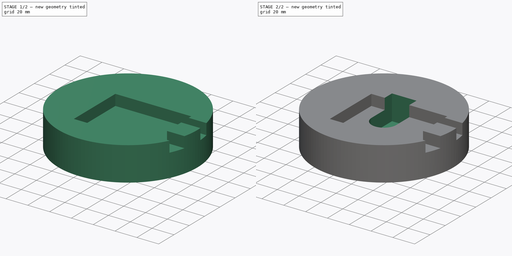
[diagram: build sequence overview — one tinted view per stage of 2, left to right]
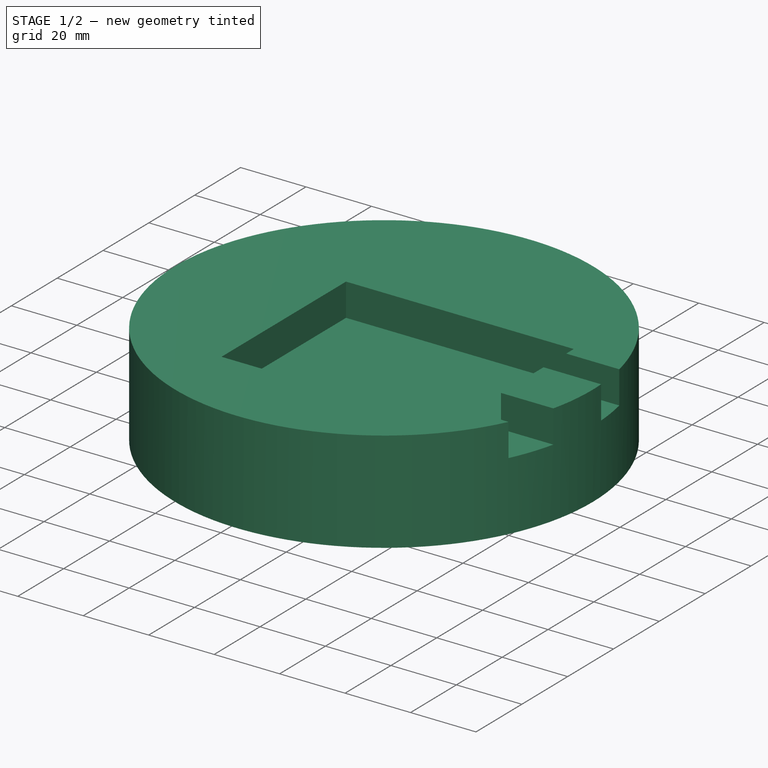
[diagram: stage 1 of 2 — iso view after this stage's code; geometry added in this stage tinted green]
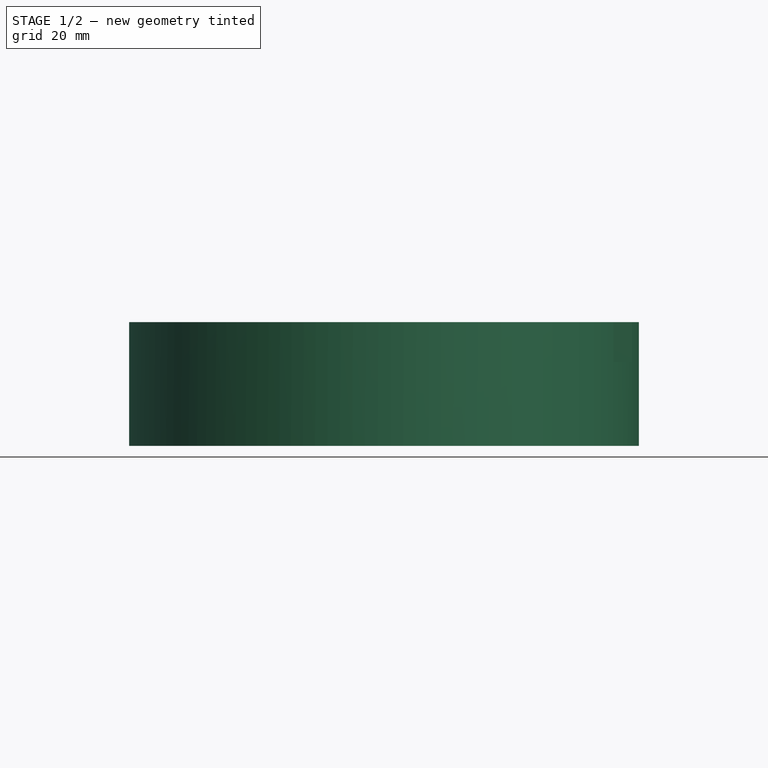
[diagram: stage 1 of 2 — front view after this stage's code; geometry added in this stage tinted green]
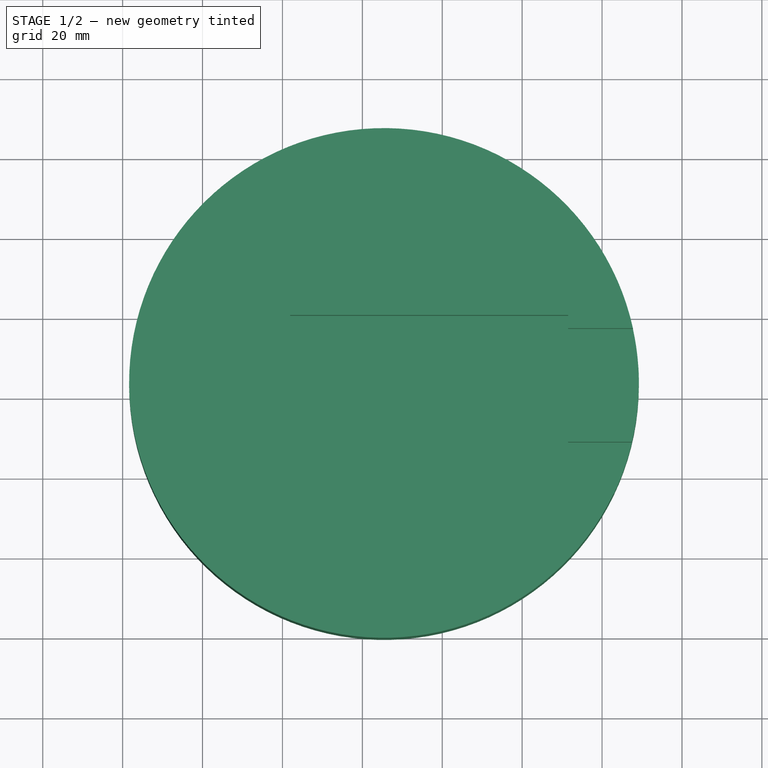
[diagram: stage 1 of 2 — top view after this stage's code; geometry added in this stage tinted green]
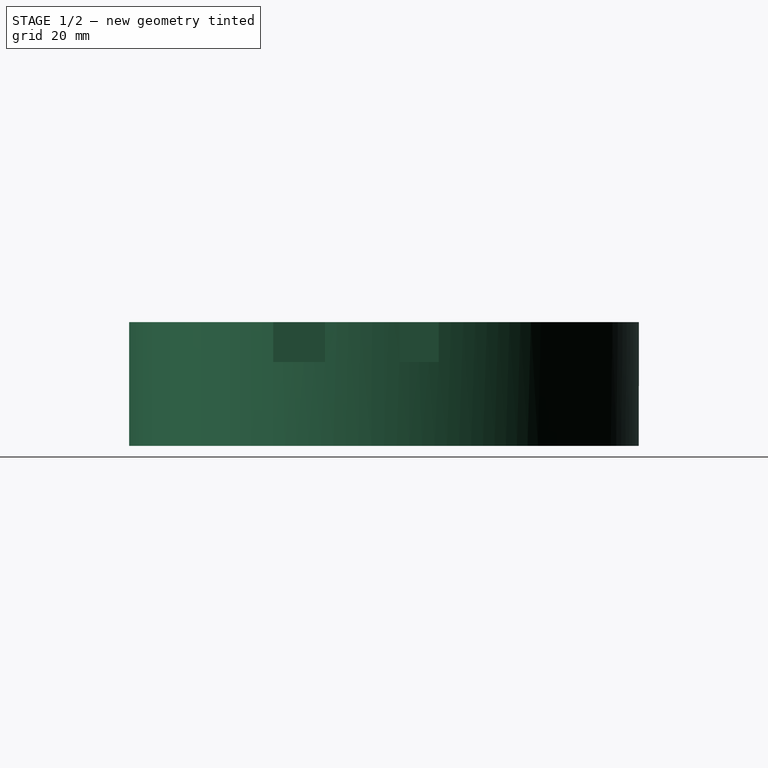
[diagram: stage 1 of 2 — right view after this stage's code; geometry added in this stage tinted green]
FCSTD DOCUMENT  (FreeCAD 0.18R14555 (Git shallow))
Label: Top
License: All rights reserved
LicenseURL: http://en.wikipedia.org/wiki/All_rights_reserved
objects: PartDesign::Line×11, Sketcher::SketchObject×4, PartDesign::Pocket×3, TechDraw::DrawSVGTemplate×2, TechDraw::DrawViewPart×2, TechDraw::DrawPage×2, Part::Feature×1, Spreadsheet::Sheet×1, PartDesign::Pad×1, PartDesign::Body×1, Part::Part2DObjectPython×1
note: 26 computed .brp shape members not serialized (recipe doc carries the construction recipe); baked Part::Feature solids carry a one-line shape summary decoded from their .brp

FEATURE [Part::Feature] Shape  label="ArduinoDXF"
  Placement = pos=(51,-1.1e-14,0) rot=(0,0,1;1.5708rad)
  shape: bbox 75.08 x 53.34 x 2e-07 mm, 0 faces, 0 solids (baked)
FEATURE [PartDesign::Line] DatumLine
  AttacherType = Attacher::AttachEngineLine
  MapMode = 29
  Placement = pos=(-17.58,-1.07e-14,0) rot=(1,0,0;1.5708rad)
  Support = -> [Shape]
FEATURE [PartDesign::Line] DatumLine001
  AttacherType = Attacher::AttachEngineLine
  MapMode = 29
  Placement = pos=(51,-1.07e-14,0) rot=(0,0.707107,0.707107;3.14159rad)
  Support = -> [Shape]
FEATURE [PartDesign::Line] DatumLine002
  AttacherType = Attacher::AttachEngineLine
  MapMode = 29
  Placement = pos=(51,-1.1e-14,0) rot=(-0.57735,0.57735,0.57735;4.18879rad)
  Support = -> [Shape]
FEATURE [PartDesign::Line] DatumLine003
  AttacherType = Attacher::AttachEngineLine
  MapMode = 29
  Placement = pos=(51,-53.34,0) rot=(0.57735,0.57735,0.57735;2.0944rad)
  Support = -> [Shape]
FEATURE [PartDesign::Line] DatumLine007
  AttacherType = Attacher::AttachEngineLine
  MapMode = 29
  Placement = pos=(57.5024,-1.42e-14,0) rot=(1,0,0;1.5708rad)
  Support = -> [Shape]
FEATURE [Spreadsheet::Sheet] Spreadsheet
  cells = A1=Toleranz to Arduino; B1(toleranz)=0.5; A2=x distance Arduino - Poti; B2(xDistArduinoPoti)=23; A3=y distance Arduino - Poti; B3(yDistArduinoPoti)=16.5; A4=Vertiefung Arduino; B4(vertiefungArduino)=10; A5=PotiDickeSchwarz; B5(PotiDickeSchwarz)=13; A6=PotiDickePin; B6(PotiDickePin)=15; A7=PotiLängeGewinde; B7(PotiGewinde)=8; A8=PotiDurchmesserSchwarz; B8(PotiDurchmesserSchwarz)=22.5; A9=PotiDurchmesserGewinde; B9(PotiDurchmesserGewinde)=10.5
FEATURE [PartDesign::Line] DatumLine008
  AttacherType = Attacher::AttachEngineLine
  MapMode = 29
  Placement = pos=(51,-43.7261,0) rot=(0.57735,0.57735,0.57735;2.0944rad)
  Support = -> [Shape]
FEATURE [PartDesign::Line] DatumLine009
  AttacherType = Attacher::AttachEngineLine
  MapMode = 29
  Placement = pos=(51,-31.75,0) rot=(0.57735,0.57735,0.57735;2.0944rad)
  Support = -> [Shape]
FEATURE [PartDesign::Line] DatumLine010
  AttacherType = Attacher::AttachEngineLine
  MapMode = 29
  Placement = pos=(41.1194,-1.42e-14,0) rot=(0,0.707107,0.707107;3.14159rad)
  Support = -> [Shape]
FEATURE [Sketcher::SketchObject] Sketch
  ExternalGeometry = -> [DatumLine,DatumLine007,DatumLine003,DatumLine002,DatumLine009,DatumLine008,DatumLine010]
  MapMode = 5
  Support = -> [XY_Plane]
  expr: Constraints[3] = Spreadsheet.yDistArduinoPoti
  expr: Constraints[2] = Spreadsheet.xDistArduinoPoti
  sketch-geometry (4):
    g0: GeomPoint X=-17.58 Y=-1.9e-14 Z=0
    g1: GeomPoint X=5.42 Y=-16.5 Z=0
    g2: Circle CenterX=5.42 CenterY=-16.5 CenterZ=0 NormalX=0 NormalY=0 NormalZ=1 AngleXU=0 Radius=63.7947
    g3: GeomPoint X=57.5024 Y=-53.34 Z=0
  constraints (8):
    c: PointOnObject(g0,g-3)
    c: PointOnObject(g0,g-6)
    c: DistanceX(g0,g1) = 23
    c: DistanceY(g1,g0) = 16.5
    c: Coincident(g2,g1)
    c: PointOnObject(g3,g2)
    c: PointOnObject(g3,g-5)
    c: PointOnObject(g3,g-4)
FEATURE [PartDesign::Pad] Pad
  Length = 31
  Length2 = 100
  Profile = -> Sketch
  Type = 0
  expr: Length = Spreadsheet.vertiefungArduino + Spreadsheet.PotiDickeSchwarz + Spreadsheet.PotiGewinde
FEATURE [TechDraw::DrawSVGTemplate] Template
  EditableTexts = Designed_by_Name=Designed by Name; Drawing_number=Drawing number; FC-Date=Date; FC-SC=Scale; FC-SH=Sheet; FC-Title=Title; Subtitle=Subtitle; Weight=Weight
  Height = 210
  Orientation = 1
  Width = 297
FEATURE [PartDesign::Line] DatumLine011
  AttacherType = Attacher::AttachEngineLine
  MapMode = 29
  Placement = pos=(51,-12.192,0) rot=(0.57735,-0.57735,-0.57735;2.0944rad)
  Support = -> [Shape]
FEATURE [PartDesign::Line] DatumLine012
  AttacherType = Attacher::AttachEngineLine
  MapMode = 29
  Placement = pos=(51,-3.302,0) rot=(0.57735,0.57735,0.57735;2.0944rad)
  Support = -> [Shape]
FEATURE [PartDesign::Line] DatumLine013
  AttacherType = Attacher::AttachEngineLine
  MapMode = 29
  Placement = pos=(38.9604,-1.07e-14,0) rot=(0,0.707107,0.707107;3.14159rad)
  Support = -> [Shape]
FEATURE [Sketcher::SketchObject] Sketch001
  ExternalGeometry = -> [DatumLine,DatumLine002,DatumLine007,DatumLine001,DatumLine010,DatumLine009,DatumLine008,DatumLine003,DatumLine013,DatumLine012,DatumLine011]
  MapMode = 5
  Placement = pos=(0,0,31) rot=(0,0,1;0rad)
  Support = -> [Pad]
  expr: Constraints[47] = Spreadsheet.toleranz
  expr: Constraints[48] = Spreadsheet.toleranz
  expr: Constraints[16] = Spreadsheet.toleranz
  expr: Constraints[33] = Spreadsheet.toleranz
  expr: Constraints[29] = Spreadsheet.toleranz
  expr: Constraints[19] = Spreadsheet.toleranz
  expr: Constraints[18] = Spreadsheet.toleranz
  expr: Constraints[17] = Spreadsheet.toleranz
  sketch-geometry (20):
    g0: GeomPoint X=-17.58 Y=-1.9e-14 Z=0
    g1: GeomPoint X=51 Y=-1.14e-14 Z=0
    g2: GeomPoint X=51 Y=-53.34 Z=0
    g3: GeomPoint X=-17.58 Y=-53.34 Z=0
    g4: LineSegment StartX=-18.08 StartY=0.5 StartZ=0 EndX=51.5 EndY=0.5 EndZ=0
    g5: LineSegment StartX=51.5 StartY=0.5 StartZ=0 EndX=51.5 EndY=-2.802 EndZ=0
    g6: LineSegment StartX=51.5 StartY=-53.84 StartZ=0 EndX=-18.08 EndY=-53.84 EndZ=0
    g7: LineSegment StartX=-18.08 StartY=-53.84 StartZ=0 EndX=-18.08 EndY=0.5 EndZ=0
    g8: LineSegment StartX=51.5 StartY=-31.25 StartZ=0 EndX=101.5 EndY=-31.25 EndZ=0
    g9: LineSegment StartX=101.5 StartY=-31.25 StartZ=0 EndX=101.5 EndY=-44.2261 EndZ=0
    g10: LineSegment StartX=101.5 StartY=-44.2261 StartZ=0 EndX=51.5 EndY=-44.2261 EndZ=0
    g11: GeomPoint X=41.1194 Y=-31.75 Z=0
    g12: GeomPoint X=41.1194 Y=-43.7261 Z=0
    g13: LineSegment StartX=51.5 StartY=-44.2261 StartZ=0 EndX=51.5 EndY=-53.84 EndZ=0
    g14: LineSegment StartX=51.5 StartY=-2.802 StartZ=0 EndX=101.5 EndY=-2.802 EndZ=0
    g15: LineSegment StartX=101.5 StartY=-2.802 StartZ=0 EndX=101.5 EndY=-12.692 EndZ=0
    g16: LineSegment StartX=101.5 StartY=-12.692 StartZ=0 EndX=51.5 EndY=-12.692 EndZ=0
    g17: LineSegment StartX=51.5 StartY=-12.692 StartZ=0 EndX=51.5 EndY=-31.25 EndZ=0
    g18: GeomPoint X=51 Y=-3.302 Z=0
    g19: GeomPoint X=51 Y=-12.192 Z=0
  constraints (50):
    c: PointOnObject(g3,g-10)
    c: PointOnObject(g3,g-3)
    c: PointOnObject(g0,g-3)
    c: PointOnObject(g0,g-4)
    c: PointOnObject(g1,g-4)
    c: PointOnObject(g1,g-6)
    c: PointOnObject(g2,g-10)
    c: PointOnObject(g2,g-6)
    c: Coincident(g4,g5)
    c: Coincident(g13,g6)
    c: Coincident(g6,g7)
    c: Coincident(g7,g4)
    c: Horizontal(g4)
    c: Horizontal(g6)
    c: Vertical(g5)
    c: Vertical(g7)
    c: DistanceY(g6,g3) = 0.5
    c: DistanceX(g6,g3) = 0.5
    c: DistanceY(g0,g4) = 0.5
    c: DistanceX(g1,g4) = 0.5
    c: Horizontal(g8)
    c: Coincident(g9,g8)
    c: Vertical(g9)
    c: Coincident(g10,g9)
    c: Horizontal(g10)
    c: PointOnObject(g11,g-7)
    c: PointOnObject(g11,g-8)
    c: PointOnObject(g12,g-9)
    c: PointOnObject(g12,g-7)
    c: DistanceY(g11,g8) = 0.5
    c: Coincident(g17,g8)
    c: Coincident(g13,g10)
    c: Tangent(g5,g13)
    c: DistanceY(g10,g12) = 0.5
    c: DistanceX(g8,g8) = 50
    c: Horizontal(g14)
    c: Coincident(g15,g14)
    c: Coincident(g16,g15)
    c: Horizontal(g16)
    c: Vertical(g15)
    c: Coincident(g5,g14)
    c: Coincident(g17,g16)
    c: Tangent(g5,g17)
    c: PointOnObject(g18,g-6)
    c: PointOnObject(g19,g-6)
    c: PointOnObject(g19,g-13)
    c: PointOnObject(g18,g-12)
    c: DistanceY(g16,g19) = 0.5
    c: DistanceY(g18,g5) = 0.5
    c: DistanceX(g16,g16) = 50
FEATURE [PartDesign::Pocket] Pocket
  BaseFeature = -> Pad
  Length = 10
  Length2 = 100
  Profile = -> Sketch001
  Type = 0
  expr: Length = Spreadsheet.vertiefungArduino
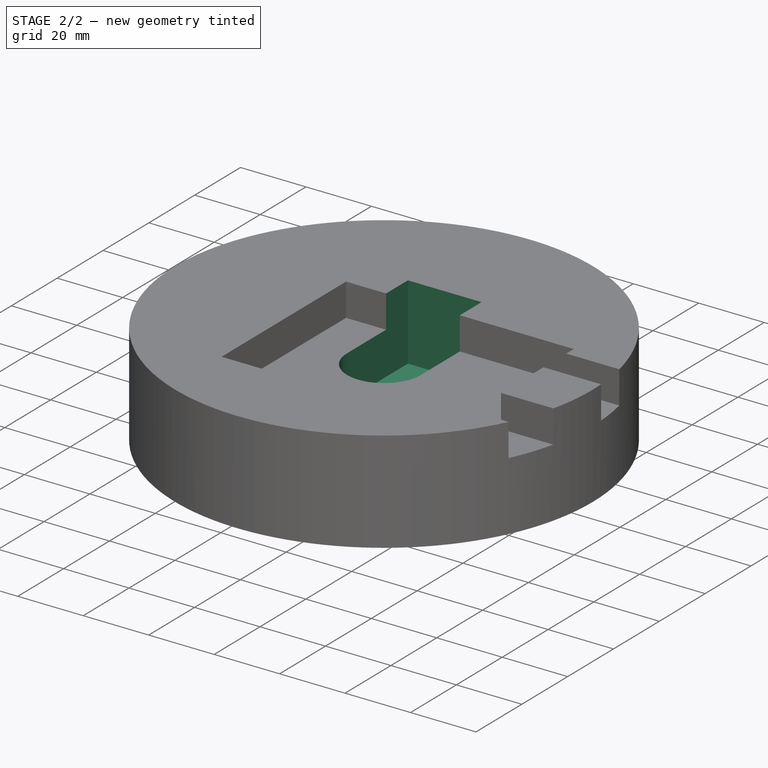
[diagram: stage 2 of 2 — iso view after this stage's code; geometry added in this stage tinted green]
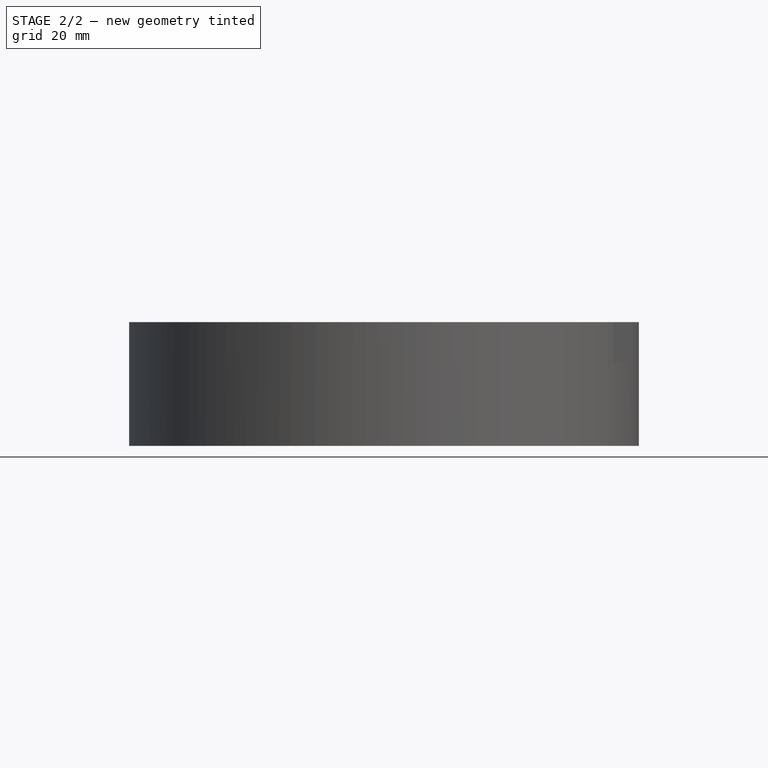
[diagram: stage 2 of 2 — front view after this stage's code; geometry added in this stage tinted green]
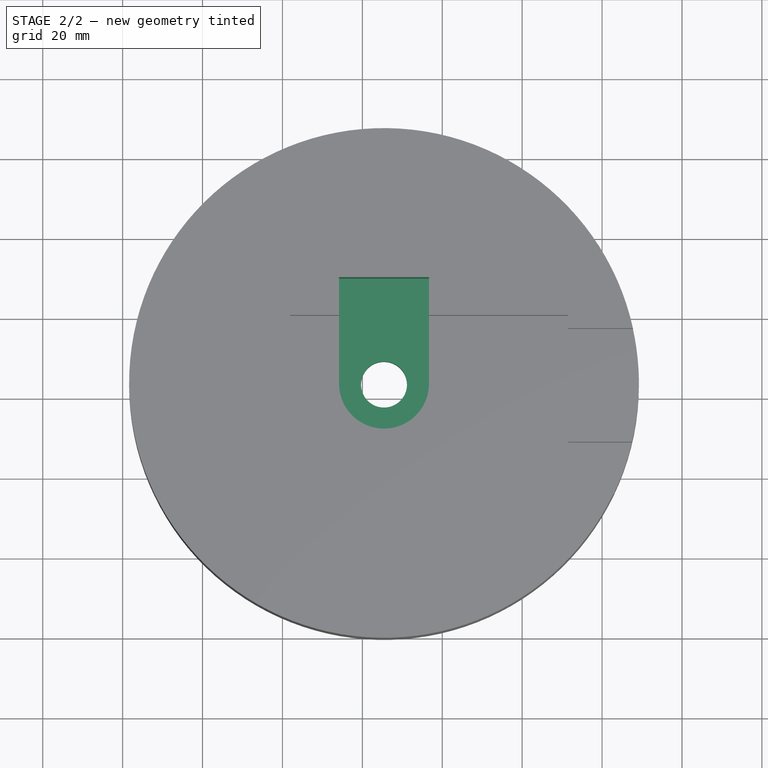
[diagram: stage 2 of 2 — top view after this stage's code; geometry added in this stage tinted green]
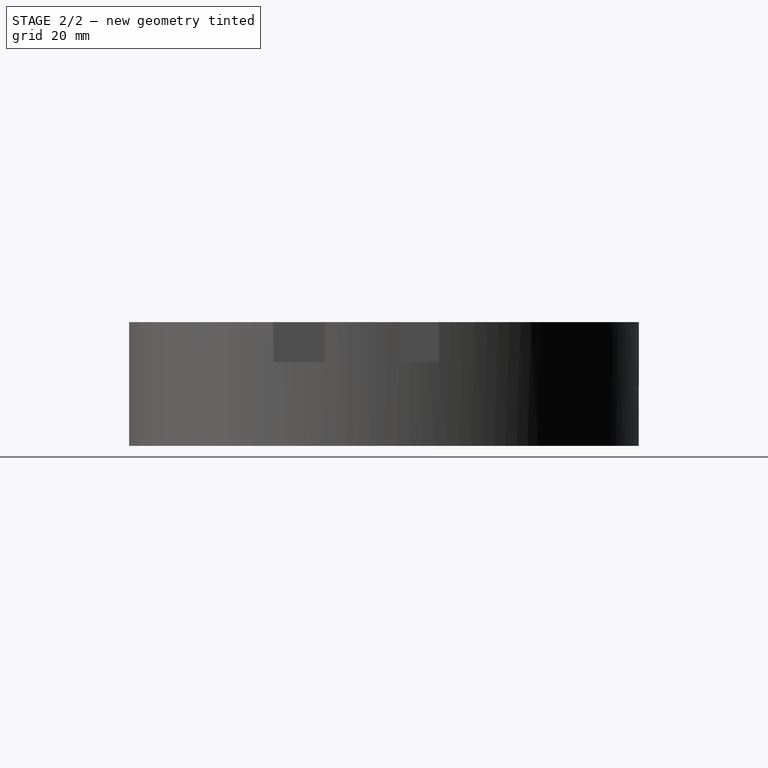
[diagram: stage 2 of 2 — right view after this stage's code; geometry added in this stage tinted green]
FEATURE [Sketcher::SketchObject] Sketch002
  ExternalGeometry = -> [DatumLine,DatumLine002]
  MapMode = 5
  Placement = pos=(0,0,31) rot=(0,0,1;0rad)
  Support = -> [Pocket]
  expr: Constraints[20] = Spreadsheet.PotiDurchmesserSchwarz / 2
  expr: Constraints[3] = Spreadsheet.xDistArduinoPoti
  expr: Constraints[2] = Spreadsheet.yDistArduinoPoti
  sketch-geometry (9):
    g0: GeomPoint X=-17.58 Y=-1.86e-14 Z=0
    g1: GeomPoint X=5.42 Y=-16.5 Z=0
    g2: ArcOfCircle CenterX=5.42 CenterY=-16.5 CenterZ=0 NormalX=0 NormalY=0 NormalZ=1 AngleXU=0 Radius=11.25 StartAngle=3.14159 EndAngle=6.28319
    g3: LineSegment StartX=-5.83 StartY=-16.5 StartZ=0 EndX=-5.83 EndY=-1.78e-14 EndZ=0
    g4: LineSegment StartX=16.67 StartY=-16.5 StartZ=0 EndX=16.67 EndY=-1.42e-14 EndZ=0
    g5: LineSegment [constr] StartX=5.42 StartY=-16.5 StartZ=0 EndX=5.42 EndY=-1.78e-14 EndZ=0
    g6: LineSegment StartX=-5.83 StartY=-1.78e-14 StartZ=0 EndX=-5.83 EndY=10 EndZ=0
    g7: LineSegment StartX=-5.83 StartY=10 StartZ=0 EndX=16.67 EndY=10 EndZ=0
    g8: LineSegment StartX=16.67 StartY=10 StartZ=0 EndX=16.67 EndY=-1.42e-14 EndZ=0
  constraints (22):
    c: PointOnObject(g0,g-4)
    c: PointOnObject(g0,g-3)
    c: DistanceY(g1,g0) = 16.5
    c: DistanceX(g0,g1) = 23
    c: Coincident(g2,g1)
    c: PointOnObject(g3,g-4)
    c: Vertical(g3)
    c: PointOnObject(g4,g-4)
    c: Coincident(g5,g1)
    c: PointOnObject(g5,g-4)
    c: Symmetric(g4,g3,g5)
    c: Coincident(g6,g3)
    c: Vertical(g6)
    c: Horizontal(g7)
    c: Coincident(g8,g4)
    c: Coincident(g8,g7)
    c: Vertical(g8)
    c: Coincident(g6,g7)
    c: Tangent(g4,g2) = -1.5708
    c: Tangent(g3,g2) = 1.5708
    c: Radius(g2) = 11.25
    c: DistanceY(g8,g8) = 10
FEATURE [PartDesign::Pocket] Pocket001
  BaseFeature = -> Pocket
  Length = 23
  Length2 = 100
  Profile = -> Sketch002
  Type = 0
  expr: Length = Spreadsheet.vertiefungArduino + Spreadsheet.PotiDickeSchwarz
FEATURE [Sketcher::SketchObject] Sketch003
  ExternalGeometry = -> [DatumLine,DatumLine002]
  MapMode = 5
  Placement = pos=(0,0,31) rot=(0,0,1;0rad)
  Support = -> [Pocket001]
  expr: Constraints[4] = Spreadsheet.yDistArduinoPoti
  expr: Constraints[3] = Spreadsheet.xDistArduinoPoti
  expr: Constraints[0] = Spreadsheet.PotiDurchmesserGewinde + Spreadsheet.toleranz * 2
  sketch-geometry (2):
    g0: Circle CenterX=5.42 CenterY=-16.5 CenterZ=0 NormalX=0 NormalY=0 NormalZ=1 AngleXU=0 Radius=5.75
    g1: GeomPoint X=-17.58 Y=-1.87e-14 Z=0
  constraints (5):
    c: Diameter(g0) = 11.5
    c: PointOnObject(g1,g-4)
    c: PointOnObject(g1,g-3)
    c: DistanceX(g1,g0) = 23
    c: DistanceY(g0,g1) = 16.5
FEATURE [PartDesign::Pocket] Pocket002
  BaseFeature = -> Pocket001
  Length = 5
  Length2 = 100
  Profile = -> Sketch003
  Type = 1
FEATURE [PartDesign::Body] Body
  Group = -> [Sketch,DatumLine,DatumLine001,DatumLine002,DatumLine003,DatumLine007,DatumLine008,DatumLine009,DatumLine010,Pad,Sketch001,DatumLine011,DatumLine012,DatumLine013,Pocket,Sketch002,Pocket001,Sketch003,Pocket002]
  Origin = -> Origin
  Tip = -> Pocket002
FEATURE [Part::Part2DObjectPython] Shape2DView  # Draft 2D object (typed FeaturePython)
  Base = -> Body
  HiddenLines = false
  InPlace = true
  Projection = (0,0,0)
  ProjectionMode = 0
  SegmentLength = 0.05
  Tessellation = false
  VisibleOnly = false
FEATURE [TechDraw::DrawViewPart] View
  CoarseView = false
  Direction = (0,0,1)
  Focus = 100
  HardHidden = false
  IsoCount = 0
  IsoHidden = false
  IsoVisible = false
  LockPosition = false
  Perspective = false
  Rotation = 0
  ScaleType = 0
  SeamHidden = false
  SeamVisible = false
  SmoothHidden = false
  SmoothVisible = false
  Source = -> [Body]
  X = 129.922
  Y = 121.256
FEATURE [TechDraw::DrawPage] Page  label="GroundPlane"
  KeepUpdated = true
  ProjectionType = 0
  Template = -> Template
  Views = -> [View]
FEATURE [TechDraw::DrawSVGTemplate] Template001
  EditableTexts = Designed_by_Name=Designed by Name; Drawing_number=Drawing number; FC-Date=Date; FC-SC=1:1; FC-SH=Sheet; FC-Title=Title; Subtitle=Subtitle; Weight=Weight
  Height = 210
  Orientation = 1
  Width = 297
FEATURE [TechDraw::DrawViewPart] View001
  CoarseView = false
  Direction = (0,0,1)
  Focus = 100
  HardHidden = false
  IsoCount = 0
  IsoHidden = false
  IsoVisible = false
  LockPosition = false
  Perspective = false
  Rotation = 0
  ScaleType = 0
  SeamHidden = false
  SeamVisible = false
  SmoothHidden = false
  SmoothVisible = false
  Source = -> [Pocket002]
  X = 86.1303
  Y = 113.626
FEATURE [TechDraw::DrawPage] Page001
  KeepUpdated = true
  ProjectionType = 0
  Template = -> Template001
  Views = -> [View001]
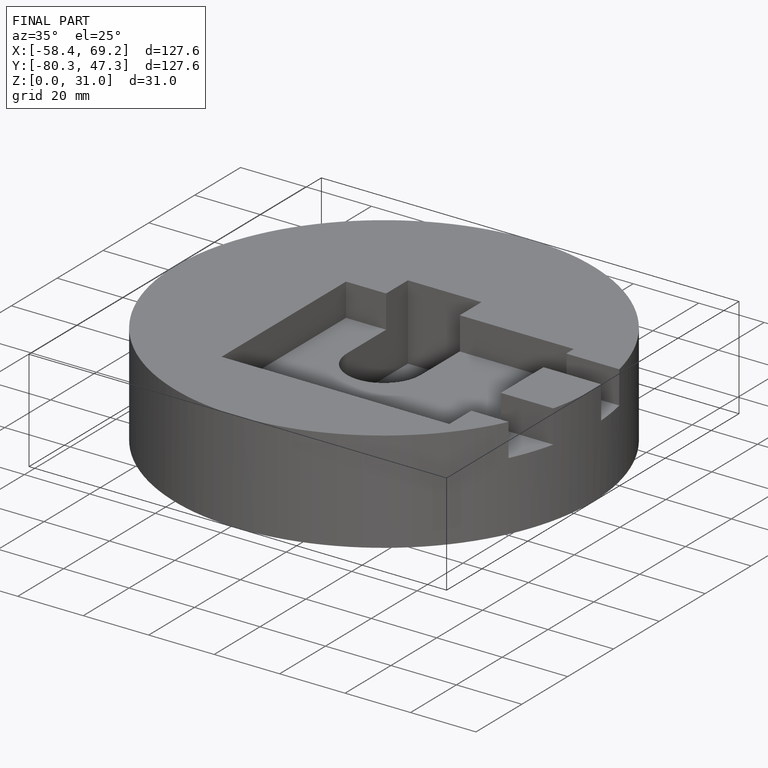
[diagram: finished part — iso view with bounding-box wireframe]
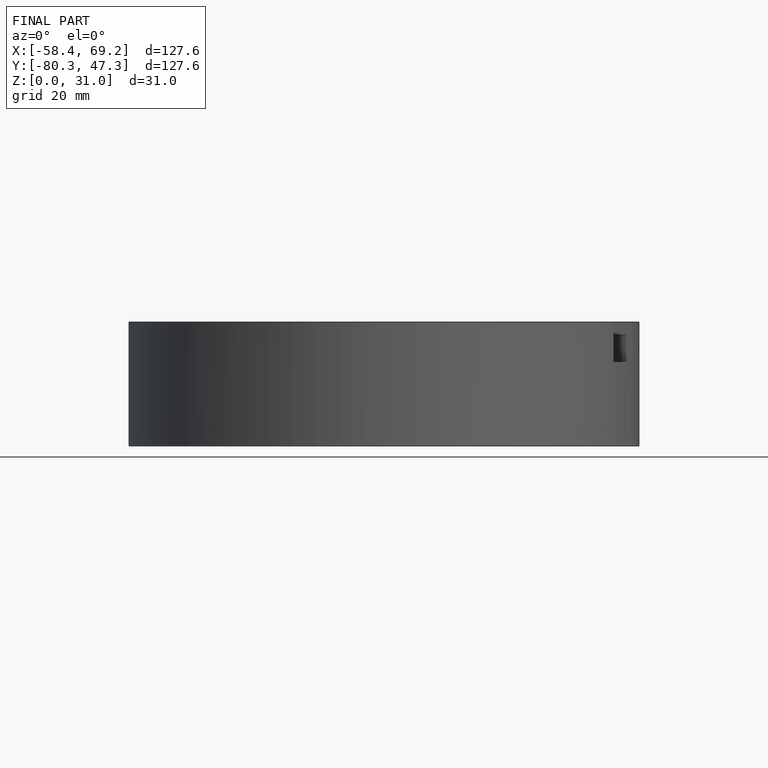
[diagram: finished part — front view with bounding-box wireframe]
